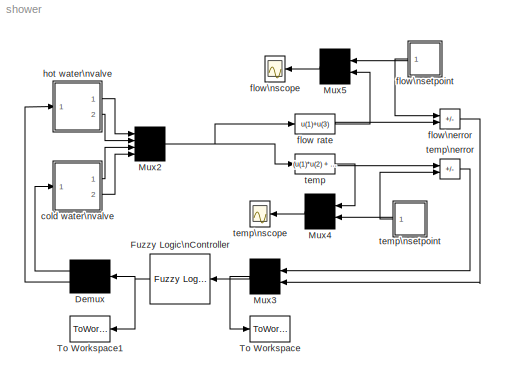
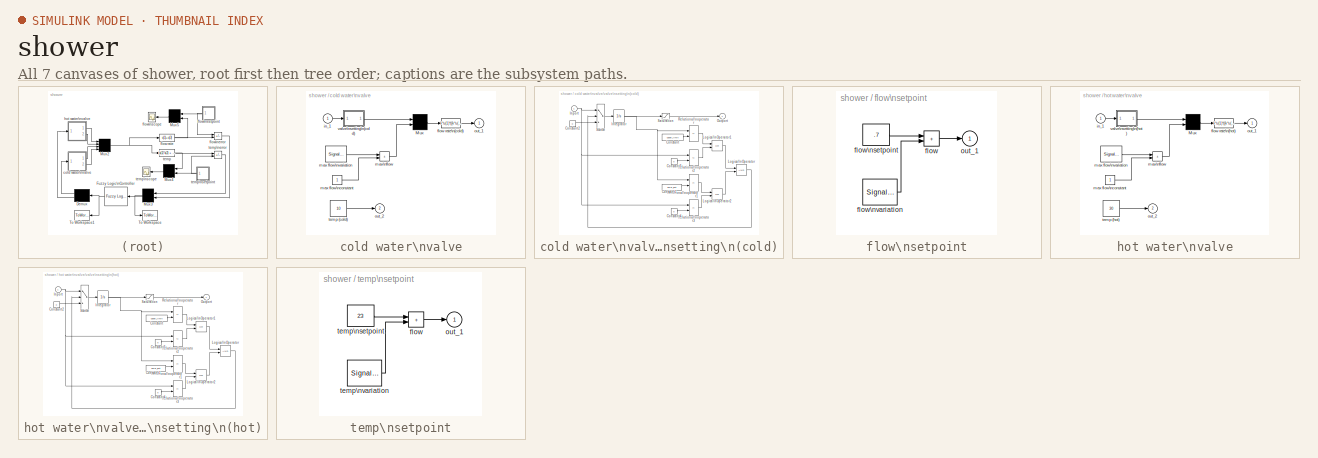
[diagram: thumbnail index - all 7 canvases of the model, root first then tree order]
MODEL shower
KIND model
CONFIG AbsTol = 1e-3
CONFIG FixedStep = auto
CONFIG MaxStep = 0.1
CONFIG MinStep = auto
CONFIG PreLoadFcn = fisMatrix=readfis('shower'); k=1;
CONFIG RelTol = 1e-3
CONFIG Solver = ode45
CONFIG SolverMode = SingleTasking
CONFIG StartTime = 0
CONFIG StopTime = 1000
BLOCK [Demux] Demux
  BusSelectionMode = off
  Outputs = 2
  Ports = [1, 2]
BLOCK [Reference] Fuzzy Logic\nController  REF=fuzblock/Fuzzy Logic \nController  (lib defined in mdl_858b3b3e7478)
  Ports = [1, 1]
  SourceBlock = fuzblock/Fuzzy Logic \nController
  SourceType = FIS
  fis = fisMatrix
BLOCK [Mux] Mux2
  DisplayOption = none
  Inputs = 4
  Ports = [4, 1]
BLOCK [Mux] Mux3
  DisplayOption = none
  Inputs = 2
  Ports = [2, 1]
BLOCK [Mux] Mux4
  DisplayOption = none
  Inputs = 2
  Ports = [2, 1]
BLOCK [Mux] Mux5
  DisplayOption = none
  Inputs = 2
  Ports = [2, 1]
BLOCK [ToWorkspace] To Workspace
  Decimation = 1
  MaxDataPoints = 1000
  SampleTime = 0
  SaveFormat = Array
  VariableName = in
BLOCK [ToWorkspace] To Workspace1
  Decimation = 1
  MaxDataPoints = 1000
  SampleTime = 0
  SaveFormat = Array
  VariableName = out
BLOCK [SubSystem] cold water\nvalve
  Ports = [1, 2]
  RTWFcnNameOpts = Auto
  RTWFileNameOpts = Auto
  RTWSystemCode = Auto
  ShowPortLabels = off
  TreatAsAtomicUnit = off
BLOCK [Mux] cold water\nvalve/Mux
  DisplayOption = none
  Inputs = 2
  Ports = [2, 1]
BLOCK [Fcn] cold water\nvalve/flow rate\n(cold)
  Expr = k*u(1)*((k*u(1))<=u(2)) + u(2)*((k*u(1))>u(2))
BLOCK [Inport] cold water\nvalve/in_1
  Interpolate = on
  Port = 1
BLOCK [Constant] cold water\nvalve/max flow\nconstant
  Value = 1
  VectorParams1D = on
BLOCK [SignalGenerator] cold water\nvalve/max flow\nvariation
  Amplitude = 0.000000
  Frequency = 0.101325
  Units = rad/sec
  VectorParams1D = on
  WaveForm = sine
BLOCK [Sum] cold water\nvalve/max\nflow
  IconShape = rectangular
  Inputs = ++
  Ports = [2, 1]
  SaturateOnIntegerOverflow = on
BLOCK [Outport] cold water\nvalve/out_1
  InitialOutput = 0
  OutputWhenDisabled = held
  Port = 1
BLOCK [Outport] cold water\nvalve/out_2
  InitialOutput = 0
  OutputWhenDisabled = held
  Port = 2
BLOCK [Constant] cold water\nvalve/temp (cold)
  Value = 10
  VectorParams1D = on
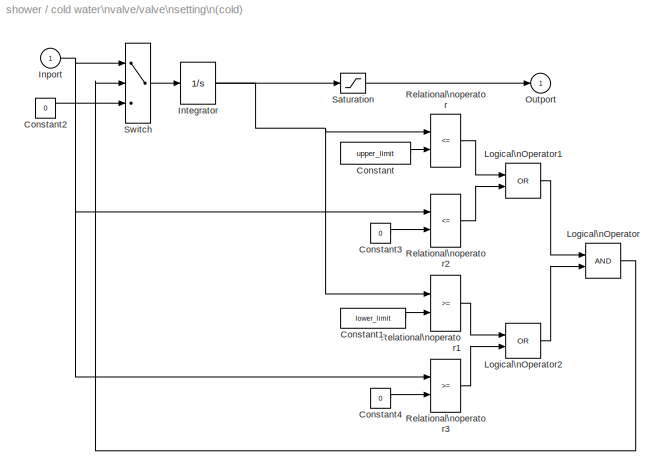
BLOCK [SubSystem] cold water\nvalve/valve\nsetting\n(cold)
  MaskCallbackString = ||
  MaskDescription = Limited Integrator
  MaskDisplay = plot(-1,-0.2,3.5,1.2,[0.05,1,2,2.9],[0,0,1,1]);disp(' 1/s    ')
  MaskEnableString = on,on,on
  MaskHelp = Implements a limited integrator with \\nan expression of the form:\\n\\nif(x<=lb and u<0) or (x>=ub and u>0)\\n   xdot=0\\nelse\\n   xdot=u
  MaskIconFrame = on
  MaskIconOpaque = on
  MaskIconRotate = none
  MaskIconUnits = autoscale
  MaskInitialization = lower_limit=@1;upper_limit=@2;X0=@3;
  MaskPromptString = Lower bound:|Upper bound:|Initial condition:
  MaskStyleString = edit,edit,edit
  MaskToolTipString = on,on,on
  MaskTunableValueString = on,on,on
  MaskType = Limited Integrator.
  MaskValueString = 0.001|2|0.1
  MaskVisibilityString = on,on,on
  Ports = [1, 1]
  RTWFcnNameOpts = Auto
  RTWFileNameOpts = Auto
  RTWSystemCode = Auto
  ShowPortLabels = off
  TreatAsAtomicUnit = off
BLOCK [Constant] cold water\nvalve/valve\nsetting\n(cold)/Constant
  Value = upper_limit
  VectorParams1D = on
BLOCK [Constant] cold water\nvalve/valve\nsetting\n(cold)/Constant1
  Value = lower_limit
  VectorParams1D = on
BLOCK [Constant] cold water\nvalve/valve\nsetting\n(cold)/Constant2
  Value = 0
  VectorParams1D = on
BLOCK [Constant] cold water\nvalve/valve\nsetting\n(cold)/Constant3
  Value = 0
  VectorParams1D = on
BLOCK [Constant] cold water\nvalve/valve\nsetting\n(cold)/Constant4
  Value = 0
  VectorParams1D = on
BLOCK [Inport] cold water\nvalve/valve\nsetting\n(cold)/Inport
  Interpolate = on
  Port = 1
BLOCK [Integrator] cold water\nvalve/valve\nsetting\n(cold)/Integrator
  AbsoluteTolerance = auto
  ExternalReset = none
  InitialCondition = X0
  InitialConditionSource = internal
  LimitOutput = off
  LowerSaturationLimit = -inf
  Ports = [1, 1]
  ShowSaturationPort = off
  ShowStatePort = off
  UpperSaturationLimit = inf
BLOCK [Logic] cold water\nvalve/valve\nsetting\n(cold)/Logical\nOperator
  Inputs = 2
  Operator = AND
  Ports = [2, 1]
BLOCK [Logic] cold water\nvalve/valve\nsetting\n(cold)/Logical\nOperator1
  Inputs = 2
  Operator = OR
  Ports = [2, 1]
BLOCK [Logic] cold water\nvalve/valve\nsetting\n(cold)/Logical\nOperator2
  Inputs = 2
  Operator = OR
  Ports = [2, 1]
BLOCK [Outport] cold water\nvalve/valve\nsetting\n(cold)/Outport
  InitialOutput = 0
  OutputWhenDisabled = held
  Port = 1
BLOCK [RelationalOperator] cold water\nvalve/valve\nsetting\n(cold)/Relational\noperator
  Operator = <=
BLOCK [RelationalOperator] cold water\nvalve/valve\nsetting\n(cold)/Relational\noperator1
  Operator = >=
BLOCK [RelationalOperator] cold water\nvalve/valve\nsetting\n(cold)/Relational\noperator2
  Operator = <=
BLOCK [RelationalOperator] cold water\nvalve/valve\nsetting\n(cold)/Relational\noperator3
  Operator = >=
BLOCK [Saturate] cold water\nvalve/valve\nsetting\n(cold)/Saturation
  LinearizeAsGain = on
  LowerLimit = lower_limit
  UpperLimit = upper_limit
BLOCK [Switch] cold water\nvalve/valve\nsetting\n(cold)/Switch
  Threshold = 0.5
BLOCK [Fcn] flow rate
  Expr = u(1)+u(3)
BLOCK [Sum] flow\nerror
  IconShape = rectangular
  Inputs = -+
  Ports = [2, 1]
  SaturateOnIntegerOverflow = on
BLOCK [Scope] flow\nscope
  DataFormat = Array
  Decimation = 1
  Floating = off
  Grid = on
  LimitDataPoints = on
  MaxDataPoints = 5000
  NumInputPorts = 1
  Ports = [1]
  SampleInput = off
  SampleTime = 0
  SaveName = ScopeData
  SaveToWorkspace = off
  TickLabels = on
  TimeRange = 50.000000
  YMax = 1
  YMin = -1
  ZoomMode = on
BLOCK [SubSystem] flow\nsetpoint
  Ports = [0, 1]
  RTWFcnNameOpts = Auto
  RTWFileNameOpts = Auto
  RTWSystemCode = Auto
  ShowPortLabels = off
  TreatAsAtomicUnit = off
BLOCK [Sum] flow\nsetpoint/flow
  IconShape = rectangular
  Inputs = ++
  Ports = [2, 1]
  SaturateOnIntegerOverflow = on
BLOCK [Constant] flow\nsetpoint/flow\nsetpoint
  Value = .7
  VectorParams1D = on
BLOCK [SignalGenerator] flow\nsetpoint/flow\nvariation
  Amplitude = 0.200000
  Frequency = 0.300000
  Units = rad/sec
  VectorParams1D = on
  WaveForm = square
BLOCK [Outport] flow\nsetpoint/out_1
  InitialOutput = 0
  OutputWhenDisabled = held
  Port = 1
BLOCK [SubSystem] hot water\nvalve
  Ports = [1, 2]
  RTWFcnNameOpts = Auto
  RTWFileNameOpts = Auto
  RTWSystemCode = Auto
  ShowPortLabels = off
  TreatAsAtomicUnit = off
BLOCK [Mux] hot water\nvalve/Mux
  DisplayOption = none
  Inputs = 2
  Ports = [2, 1]
BLOCK [Fcn] hot water\nvalve/flow rate\n(hot)
  Expr = k*u(1)*((k*u(1))<=u(2)) + u(2)*((k*u(1))>u(2))
BLOCK [Inport] hot water\nvalve/in_1
  Interpolate = on
  Port = 1
BLOCK [Constant] hot water\nvalve/max flow\nconstant
  Value = 1
  VectorParams1D = on
BLOCK [SignalGenerator] hot water\nvalve/max flow\nvariation
  Amplitude = 0.000000
  Frequency = 0.300000
  Units = rad/sec
  VectorParams1D = on
  WaveForm = sine
BLOCK [Sum] hot water\nvalve/max\nflow
  IconShape = rectangular
  Inputs = ++
  Ports = [2, 1]
  SaturateOnIntegerOverflow = on
BLOCK [Outport] hot water\nvalve/out_1
  InitialOutput = 0
  OutputWhenDisabled = held
  Port = 1
BLOCK [Outport] hot water\nvalve/out_2
  InitialOutput = 0
  OutputWhenDisabled = held
  Port = 2
BLOCK [Constant] hot water\nvalve/temp (hot)
  Value = 30
  VectorParams1D = on
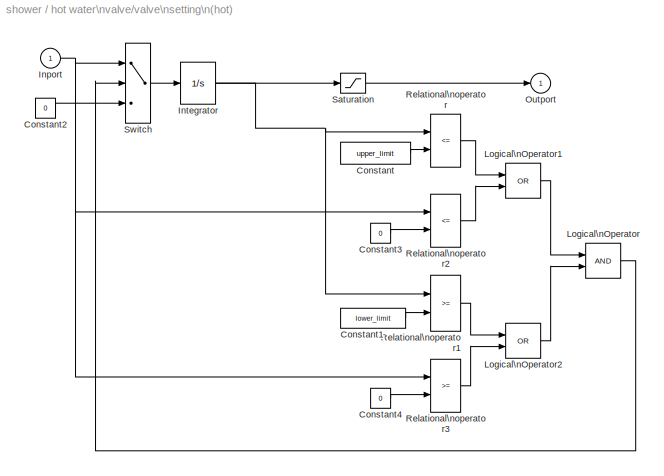
BLOCK [SubSystem] hot water\nvalve/valve\nsetting\n(hot)
  MaskCallbackString = ||
  MaskDescription = Limited Integrator
  MaskDisplay = plot(-1,-0.2,3.5,1.2,[0.05,1,2,2.9],[0,0,1,1]);disp(' 1/s    ')
  MaskEnableString = on,on,on
  MaskHelp = Implements a limited integrator with \\nan expression of the form:\\n\\nif(x<=lb and u<0) or (x>=ub and u>0)\\n   xdot=0\\nelse\\n   xdot=u
  MaskIconFrame = on
  MaskIconOpaque = on
  MaskIconRotate = none
  MaskIconUnits = autoscale
  MaskInitialization = lower_limit=@1;upper_limit=@2;X0=@3;
  MaskPromptString = Lower bound:|Upper bound:|Initial condition:
  MaskStyleString = edit,edit,edit
  MaskToolTipString = on,on,on
  MaskTunableValueString = on,on,on
  MaskType = Limited Integrator.
  MaskValueString = 0.001|2|.1
  MaskVisibilityString = on,on,on
  Ports = [1, 1]
  RTWFcnNameOpts = Auto
  RTWFileNameOpts = Auto
  RTWSystemCode = Auto
  ShowPortLabels = off
  TreatAsAtomicUnit = off
BLOCK [Constant] hot water\nvalve/valve\nsetting\n(hot)/Constant
  Value = upper_limit
  VectorParams1D = on
BLOCK [Constant] hot water\nvalve/valve\nsetting\n(hot)/Constant1
  Value = lower_limit
  VectorParams1D = on
BLOCK [Constant] hot water\nvalve/valve\nsetting\n(hot)/Constant2
  Value = 0
  VectorParams1D = on
BLOCK [Constant] hot water\nvalve/valve\nsetting\n(hot)/Constant3
  Value = 0
  VectorParams1D = on
BLOCK [Constant] hot water\nvalve/valve\nsetting\n(hot)/Constant4
  Value = 0
  VectorParams1D = on
BLOCK [Inport] hot water\nvalve/valve\nsetting\n(hot)/Inport
  Interpolate = on
  Port = 1
BLOCK [Integrator] hot water\nvalve/valve\nsetting\n(hot)/Integrator
  AbsoluteTolerance = auto
  ExternalReset = none
  InitialCondition = X0
  InitialConditionSource = internal
  LimitOutput = off
  LowerSaturationLimit = -inf
  Ports = [1, 1]
  ShowSaturationPort = off
  ShowStatePort = off
  UpperSaturationLimit = inf
BLOCK [Logic] hot water\nvalve/valve\nsetting\n(hot)/Logical\nOperator
  Inputs = 2
  Operator = AND
  Ports = [2, 1]
BLOCK [Logic] hot water\nvalve/valve\nsetting\n(hot)/Logical\nOperator1
  Inputs = 2
  Operator = OR
  Ports = [2, 1]
BLOCK [Logic] hot water\nvalve/valve\nsetting\n(hot)/Logical\nOperator2
  Inputs = 2
  Operator = OR
  Ports = [2, 1]
BLOCK [Outport] hot water\nvalve/valve\nsetting\n(hot)/Outport
  InitialOutput = 0
  OutputWhenDisabled = held
  Port = 1
BLOCK [RelationalOperator] hot water\nvalve/valve\nsetting\n(hot)/Relational\noperator
  Operator = <=
BLOCK [RelationalOperator] hot water\nvalve/valve\nsetting\n(hot)/Relational\noperator1
  Operator = >=
BLOCK [RelationalOperator] hot water\nvalve/valve\nsetting\n(hot)/Relational\noperator2
  Operator = <=
BLOCK [RelationalOperator] hot water\nvalve/valve\nsetting\n(hot)/Relational\noperator3
  Operator = >=
BLOCK [Saturate] hot water\nvalve/valve\nsetting\n(hot)/Saturation
  LinearizeAsGain = on
  LowerLimit = lower_limit
  UpperLimit = upper_limit
BLOCK [Switch] hot water\nvalve/valve\nsetting\n(hot)/Switch
  Threshold = 0.5
BLOCK [Fcn] temp
  Expr = (u(1)*u(2) + u(3)*u(4))/(u(1)+u(3))
BLOCK [Sum] temp\nerror
  IconShape = rectangular
  Inputs = +-
  Ports = [2, 1]
  SaturateOnIntegerOverflow = on
BLOCK [Scope] temp\nscope
  DataFormat = Array
  Decimation = 1
  Floating = off
  Grid = on
  LimitDataPoints = on
  MaxDataPoints = 5000
  NumInputPorts = 1
  Ports = [1]
  SampleInput = off
  SampleTime = 0
  SaveName = ScopeData
  SaveToWorkspace = off
  TickLabels = on
  TimeRange = 50.000000
  YMax = 30
  YMin = -30
  ZoomMode = on
BLOCK [SubSystem] temp\nsetpoint
  Ports = [0, 1]
  RTWFcnNameOpts = Auto
  RTWFileNameOpts = Auto
  RTWSystemCode = Auto
  ShowPortLabels = off
  TreatAsAtomicUnit = off
BLOCK [Sum] temp\nsetpoint/flow
  IconShape = rectangular
  Inputs = ++
  Ports = [2, 1]
  SaturateOnIntegerOverflow = on
BLOCK [Outport] temp\nsetpoint/out_1
  InitialOutput = 0
  OutputWhenDisabled = held
  Port = 1
BLOCK [Constant] temp\nsetpoint/temp\nsetpoint
  Value = 23
  VectorParams1D = on
BLOCK [SignalGenerator] temp\nsetpoint/temp\nvariation
  Amplitude = 4.000000
  Frequency = 0.214320
  Units = rad/sec
  VectorParams1D = on
  WaveForm = square
LINE Demux:1 -> cold water\nvalve:1
LINE Demux:2 -> hot water\nvalve:1
NET Fuzzy Logic\nController:1 -> Demux:1, To Workspace1:1
NET Mux2:1 -> flow rate:1, temp:1
NET Mux3:1 -> Fuzzy Logic\nController:1, To Workspace:1
LINE Mux4:1 -> temp\nscope:1
LINE Mux5:1 -> flow\nscope:1
LINE cold water\nvalve/Mux:1 -> cold water\nvalve/flow rate\n(cold):1
LINE cold water\nvalve/flow rate\n(cold):1 -> cold water\nvalve/out_1:1
LINE cold water\nvalve/in_1:1 -> cold water\nvalve/valve\nsetting\n(cold):1
LINE cold water\nvalve/max flow\nconstant:1 -> cold water\nvalve/max\nflow:2
LINE cold water\nvalve/max flow\nvariation:1 -> cold water\nvalve/max\nflow:1
LINE cold water\nvalve/max\nflow:1 -> cold water\nvalve/Mux:2
LINE cold water\nvalve/temp (cold):1 -> cold water\nvalve/out_2:1
LINE cold water\nvalve/valve\nsetting\n(cold)/Constant1:1 -> cold water\nvalve/valve\nsetting\n(cold)/Relational\noperator1:2
LINE cold water\nvalve/valve\nsetting\n(cold)/Constant2:1 -> cold water\nvalve/valve\nsetting\n(cold)/Switch:3
LINE cold water\nvalve/valve\nsetting\n(cold)/Constant3:1 -> cold water\nvalve/valve\nsetting\n(cold)/Relational\noperator2:2
LINE cold water\nvalve/valve\nsetting\n(cold)/Constant4:1 -> cold water\nvalve/valve\nsetting\n(cold)/Relational\noperator3:2
LINE cold water\nvalve/valve\nsetting\n(cold)/Constant:1 -> cold water\nvalve/valve\nsetting\n(cold)/Relational\noperator:2
NET cold water\nvalve/valve\nsetting\n(cold)/Inport:1 -> cold water\nvalve/valve\nsetting\n(cold)/Relational\noperator2:1, cold water\nvalve/valve\nsetting\n(cold)/Relational\noperator3:1, cold water\nvalve/valve\nsetting\n(cold)/Switch:1
NET cold water\nvalve/valve\nsetting\n(cold)/Integrator:1 -> cold water\nvalve/valve\nsetting\n(cold)/Relational\noperator1:1, cold water\nvalve/valve\nsetting\n(cold)/Relational\noperator:1, cold water\nvalve/valve\nsetting\n(cold)/Saturation:1
LINE cold water\nvalve/valve\nsetting\n(cold)/Logical\nOperator1:1 -> cold water\nvalve/valve\nsetting\n(cold)/Logical\nOperator:1
LINE cold water\nvalve/valve\nsetting\n(cold)/Logical\nOperator2:1 -> cold water\nvalve/valve\nsetting\n(cold)/Logical\nOperator:2
LINE cold water\nvalve/valve\nsetting\n(cold)/Logical\nOperator:1 -> cold water\nvalve/valve\nsetting\n(cold)/Switch:2
LINE cold water\nvalve/valve\nsetting\n(cold)/Relational\noperator1:1 -> cold water\nvalve/valve\nsetting\n(cold)/Logical\nOperator2:1
LINE cold water\nvalve/valve\nsetting\n(cold)/Relational\noperator2:1 -> cold water\nvalve/valve\nsetting\n(cold)/Logical\nOperator1:2
LINE cold water\nvalve/valve\nsetting\n(cold)/Relational\noperator3:1 -> cold water\nvalve/valve\nsetting\n(cold)/Logical\nOperator2:2
LINE cold water\nvalve/valve\nsetting\n(cold)/Relational\noperator:1 -> cold water\nvalve/valve\nsetting\n(cold)/Logical\nOperator1:1
LINE cold water\nvalve/valve\nsetting\n(cold)/Saturation:1 -> cold water\nvalve/valve\nsetting\n(cold)/Outport:1
LINE cold water\nvalve/valve\nsetting\n(cold)/Switch:1 -> cold water\nvalve/valve\nsetting\n(cold)/Integrator:1
LINE cold water\nvalve/valve\nsetting\n(cold):1 -> cold water\nvalve/Mux:1
LINE cold water\nvalve:1 -> Mux2:3
LINE cold water\nvalve:2 -> Mux2:4
NET flow rate:1 -> Mux5:2, flow\nerror:2
LINE flow\nerror:1 -> Mux3:2
LINE flow\nsetpoint/flow:1 -> flow\nsetpoint/out_1:1
LINE flow\nsetpoint/flow\nsetpoint:1 -> flow\nsetpoint/flow:1
LINE flow\nsetpoint/flow\nvariation:1 -> flow\nsetpoint/flow:2
NET flow\nsetpoint:1 -> Mux5:1, flow\nerror:1
LINE hot water\nvalve/Mux:1 -> hot water\nvalve/flow rate\n(hot):1
LINE hot water\nvalve/flow rate\n(hot):1 -> hot water\nvalve/out_1:1
LINE hot water\nvalve/in_1:1 -> hot water\nvalve/valve\nsetting\n(hot):1
LINE hot water\nvalve/max flow\nconstant:1 -> hot water\nvalve/max\nflow:2
LINE hot water\nvalve/max flow\nvariation:1 -> hot water\nvalve/max\nflow:1
LINE hot water\nvalve/max\nflow:1 -> hot water\nvalve/Mux:2
LINE hot water\nvalve/temp (hot):1 -> hot water\nvalve/out_2:1
LINE hot water\nvalve/valve\nsetting\n(hot)/Constant1:1 -> hot water\nvalve/valve\nsetting\n(hot)/Relational\noperator1:2
LINE hot water\nvalve/valve\nsetting\n(hot)/Constant2:1 -> hot water\nvalve/valve\nsetting\n(hot)/Switch:3
LINE hot water\nvalve/valve\nsetting\n(hot)/Constant3:1 -> hot water\nvalve/valve\nsetting\n(hot)/Relational\noperator2:2
LINE hot water\nvalve/valve\nsetting\n(hot)/Constant4:1 -> hot water\nvalve/valve\nsetting\n(hot)/Relational\noperator3:2
LINE hot water\nvalve/valve\nsetting\n(hot)/Constant:1 -> hot water\nvalve/valve\nsetting\n(hot)/Relational\noperator:2
NET hot water\nvalve/valve\nsetting\n(hot)/Inport:1 -> hot water\nvalve/valve\nsetting\n(hot)/Relational\noperator2:1, hot water\nvalve/valve\nsetting\n(hot)/Relational\noperator3:1, hot water\nvalve/valve\nsetting\n(hot)/Switch:1
NET hot water\nvalve/valve\nsetting\n(hot)/Integrator:1 -> hot water\nvalve/valve\nsetting\n(hot)/Relational\noperator1:1, hot water\nvalve/valve\nsetting\n(hot)/Relational\noperator:1, hot water\nvalve/valve\nsetting\n(hot)/Saturation:1
LINE hot water\nvalve/valve\nsetting\n(hot)/Logical\nOperator1:1 -> hot water\nvalve/valve\nsetting\n(hot)/Logical\nOperator:1
LINE hot water\nvalve/valve\nsetting\n(hot)/Logical\nOperator2:1 -> hot water\nvalve/valve\nsetting\n(hot)/Logical\nOperator:2
LINE hot water\nvalve/valve\nsetting\n(hot)/Logical\nOperator:1 -> hot water\nvalve/valve\nsetting\n(hot)/Switch:2
LINE hot water\nvalve/valve\nsetting\n(hot)/Relational\noperator1:1 -> hot water\nvalve/valve\nsetting\n(hot)/Logical\nOperator2:1
LINE hot water\nvalve/valve\nsetting\n(hot)/Relational\noperator2:1 -> hot water\nvalve/valve\nsetting\n(hot)/Logical\nOperator1:2
LINE hot water\nvalve/valve\nsetting\n(hot)/Relational\noperator3:1 -> hot water\nvalve/valve\nsetting\n(hot)/Logical\nOperator2:2
LINE hot water\nvalve/valve\nsetting\n(hot)/Relational\noperator:1 -> hot water\nvalve/valve\nsetting\n(hot)/Logical\nOperator1:1
LINE hot water\nvalve/valve\nsetting\n(hot)/Saturation:1 -> hot water\nvalve/valve\nsetting\n(hot)/Outport:1
LINE hot water\nvalve/valve\nsetting\n(hot)/Switch:1 -> hot water\nvalve/valve\nsetting\n(hot)/Integrator:1
LINE hot water\nvalve/valve\nsetting\n(hot):1 -> hot water\nvalve/Mux:1
LINE hot water\nvalve:1 -> Mux2:1
LINE hot water\nvalve:2 -> Mux2:2
NET temp:1 -> Mux4:1, temp\nerror:1
LINE temp\nerror:1 -> Mux3:1
LINE temp\nsetpoint/flow:1 -> temp\nsetpoint/out_1:1
LINE temp\nsetpoint/temp\nsetpoint:1 -> temp\nsetpoint/flow:1
LINE temp\nsetpoint/temp\nvariation:1 -> temp\nsetpoint/flow:2
NET temp\nsetpoint:1 -> Mux4:2, temp\nerror:2
note: NET lines group one-source signal fan-out (src -> all destinations, sorted); 1:1 wires keep LINE
